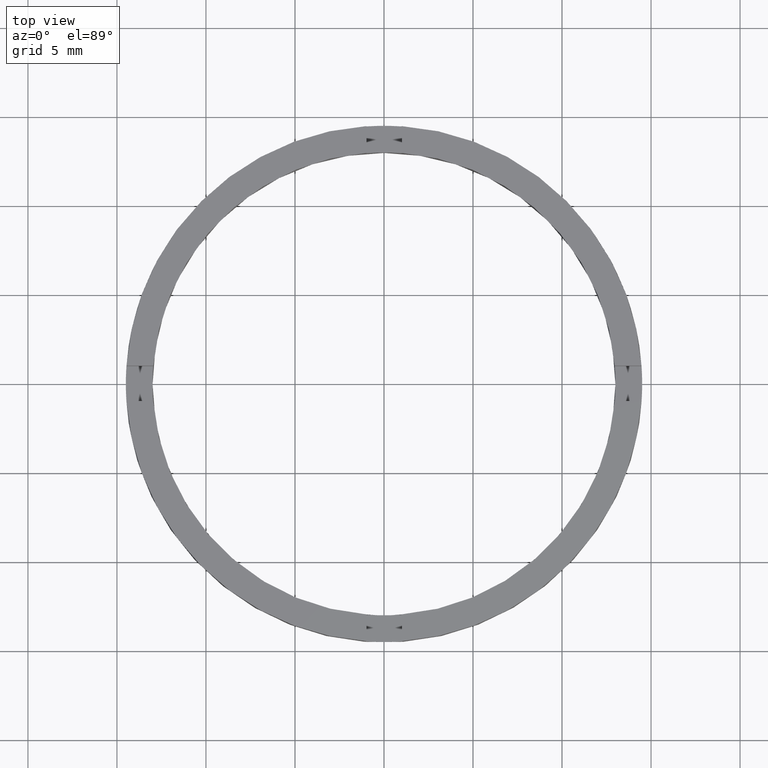
[diagram: clean part render]
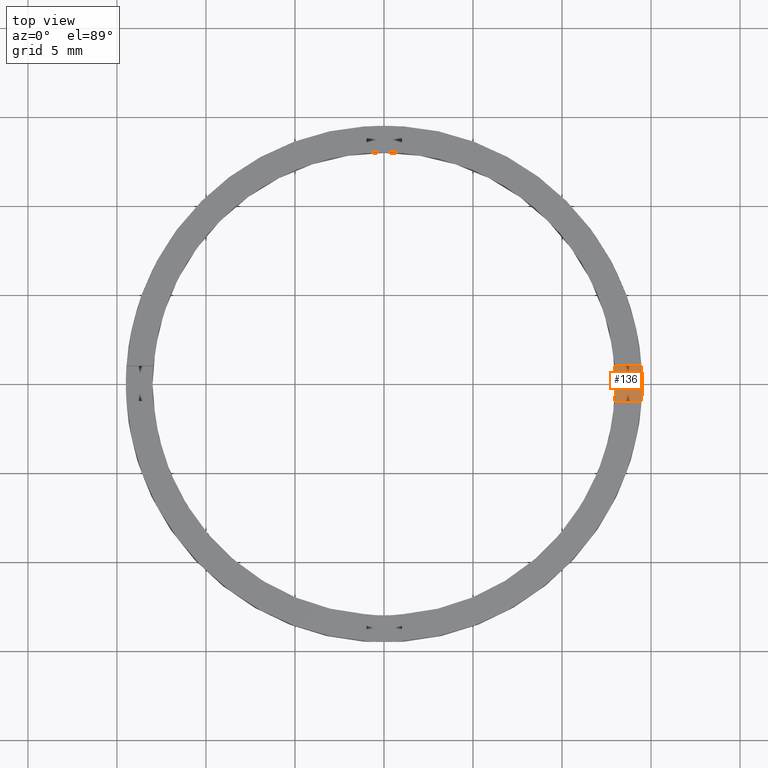
[diagram: same view with one face highlighted and labeled with its STEP entity id]
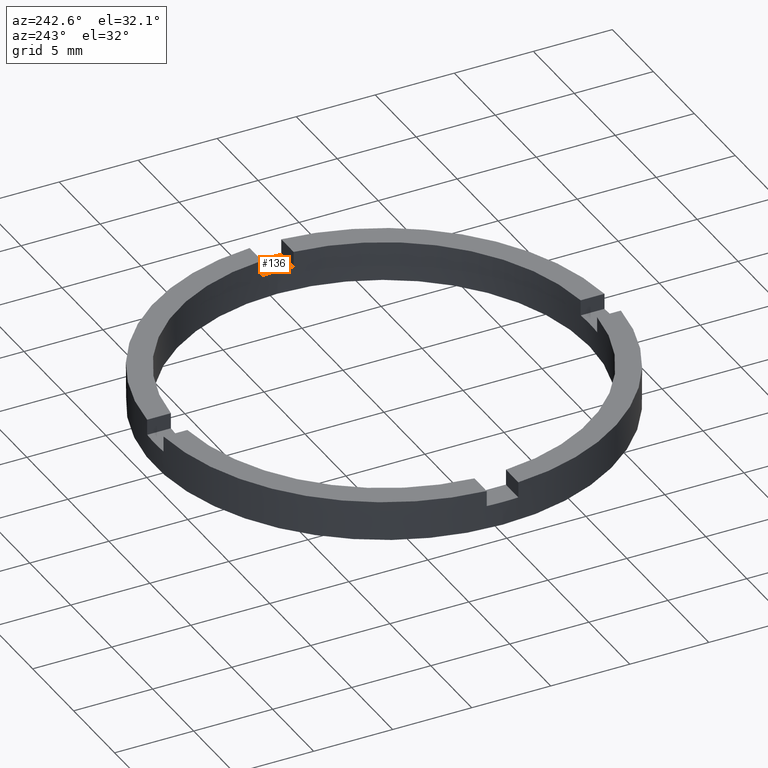
[diagram: same view with one face highlighted and labeled with its STEP entity id]
A machine part, top view. The second image highlights one B-rep face of the part: STEP entity #136.
A second angle (auxiliary view) of the same face is appended — the face is thin or edge-on in the first view.
In plain terms, the highlighted planar face has unit normal (0, 0, 1).
Its self-contained STEP definition (entity closure, byte-faithful):
#24 = DIRECTION ( 'NONE',  ( 1.000000000000000000, 4.336808689942017736E-17, 0.000000000000000000 ) ) ;
#27 = CARTESIAN_POINT ( 'NONE',  ( 4.499999999999995559, 0.9999999999998402389, 1.500000000000000000 ) ) ;
#50 = CIRCLE ( 'NONE', #184, 13.00000000000000178 ) ;
#97 = DIRECTION ( 'NONE',  ( 0.000000000000000000, 0.000000000000000000, 1.000000000000000000 ) ) ;
#117 = CIRCLE ( 'NONE', #351, 14.50000000000000000 ) ;
#132 = FACE_OUTER_BOUND ( 'NONE', #701, .T. ) ;
#136 = ADVANCED_FACE ( 'NONE', ( #132 ), #259, .T. ) ;
#142 = VECTOR ( 'NONE', #150, 1000.000000000000000 ) ;
#143 = ORIENTED_EDGE ( 'NONE', *, *, #286, .T. ) ;
#150 = DIRECTION ( 'NONE',  ( -1.000000000000000000, -4.336808689942017736E-17, -0.000000000000000000 ) ) ;
#159 = CARTESIAN_POINT ( 'NONE',  ( 14.50000000000000000, 1.775737858763662015E-15, 1.500000000000000000 ) ) ;
#184 = AXIS2_PLACEMENT_3D ( 'NONE', #503, #455, #278 ) ;
#186 = EDGE_CURVE ( 'NONE', #736, #261, #651, .T. ) ;
#218 = CARTESIAN_POINT ( 'NONE',  ( 14.46547614148944483, 0.9999999999998406830, 1.500000000000000000 ) ) ;
#219 = VERTEX_POINT ( 'NONE', #422 ) ;
#249 = CARTESIAN_POINT ( 'NONE',  ( 0.000000000000000000, 0.000000000000000000, 1.500000000000000000 ) ) ;
#259 = PLANE ( 'NONE',  #490 ) ;
#261 = VERTEX_POINT ( 'NONE', #540 ) ;
#269 = AXIS2_PLACEMENT_3D ( 'NONE', #249, #310, #349 ) ;
#278 = DIRECTION ( 'NONE',  ( 1.000000000000000000, 0.000000000000000000, 0.000000000000000000 ) ) ;
#286 = EDGE_CURVE ( 'NONE', #734, #736, #117, .T. ) ;
#310 = DIRECTION ( 'NONE',  ( 0.000000000000000000, 0.000000000000000000, 1.000000000000000000 ) ) ;
#311 = LINE ( 'NONE', #695, #313 ) ;
#313 = VECTOR ( 'NONE', #24, 1000.000000000000000 ) ;
#329 = DIRECTION ( 'NONE',  ( 1.000000000000000000, 0.000000000000000000, 0.000000000000000000 ) ) ;
#333 = EDGE_CURVE ( 'NONE', #665, #261, #443, .T. ) ;
#349 = DIRECTION ( 'NONE',  ( 1.000000000000000000, 0.000000000000000000, 0.000000000000000000 ) ) ;
#351 = AXIS2_PLACEMENT_3D ( 'NONE', #469, #97, #393 ) ;
#356 = CARTESIAN_POINT ( 'NONE',  ( 0.000000000000000000, 0.000000000000000000, 1.500000000000000000 ) ) ;
#364 = EDGE_CURVE ( 'NONE', #491, #734, #565, .T. ) ;
#393 = DIRECTION ( 'NONE',  ( 1.000000000000000000, 0.000000000000000000, 0.000000000000000000 ) ) ;
#402 = AXIS2_PLACEMENT_3D ( 'NONE', #749, #620, #329 ) ;
#415 = ORIENTED_EDGE ( 'NONE', *, *, #364, .T. ) ;
#422 = CARTESIAN_POINT ( 'NONE',  ( 12.96148139681570832, -1.000000000000159428, 1.500000000000000000 ) ) ;
#424 = EDGE_CURVE ( 'NONE', #219, #491, #311, .T. ) ;
#427 = DIRECTION ( 'NONE',  ( 0.000000000000000000, 0.000000000000000000, 1.000000000000000000 ) ) ;
#443 = CIRCLE ( 'NONE', #269, 13.00000000000000178 ) ;
#455 = DIRECTION ( 'NONE',  ( 0.000000000000000000, 0.000000000000000000, 1.000000000000000000 ) ) ;
#457 = EDGE_CURVE ( 'NONE', #219, #665, #50, .T. ) ;
#468 = CARTESIAN_POINT ( 'NONE',  ( 13.00000000000000178, 1.592040838891559293E-15, 1.500000000000000000 ) ) ;
#469 = CARTESIAN_POINT ( 'NONE',  ( 0.000000000000000000, 0.000000000000000000, 1.500000000000000000 ) ) ;
#490 = AXIS2_PLACEMENT_3D ( 'NONE', #356, #427, #492 ) ;
#491 = VERTEX_POINT ( 'NONE', #515 ) ;
#492 = DIRECTION ( 'NONE',  ( 1.000000000000000000, 0.000000000000000000, -0.000000000000000000 ) ) ;
#503 = CARTESIAN_POINT ( 'NONE',  ( 0.000000000000000000, 0.000000000000000000, 1.500000000000000000 ) ) ;
#515 = CARTESIAN_POINT ( 'NONE',  ( 14.46547614148942174, -1.000000000000159428, 1.500000000000000000 ) ) ;
#540 = CARTESIAN_POINT ( 'NONE',  ( 12.96148139681573497, 0.9999999999998406830, 1.500000000000000000 ) ) ;
#565 = CIRCLE ( 'NONE', #402, 14.50000000000000000 ) ;
#620 = DIRECTION ( 'NONE',  ( 0.000000000000000000, 0.000000000000000000, 1.000000000000000000 ) ) ;
#643 = ORIENTED_EDGE ( 'NONE', *, *, #186, .T. ) ;
#650 = ORIENTED_EDGE ( 'NONE', *, *, #424, .T. ) ;
#651 = LINE ( 'NONE', #27, #142 ) ;
#665 = VERTEX_POINT ( 'NONE', #468 ) ;
#695 = CARTESIAN_POINT ( 'NONE',  ( 4.499999999999995559, -1.000000000000159872, 1.500000000000000000 ) ) ;
#701 = EDGE_LOOP ( 'NONE', ( #415, #143, #643, #728, #771, #650 ) ) ;
#728 = ORIENTED_EDGE ( 'NONE', *, *, #333, .F. ) ;
#734 = VERTEX_POINT ( 'NONE', #159 ) ;
#736 = VERTEX_POINT ( 'NONE', #218 ) ;
#749 = CARTESIAN_POINT ( 'NONE',  ( 0.000000000000000000, 0.000000000000000000, 1.500000000000000000 ) ) ;
#771 = ORIENTED_EDGE ( 'NONE', *, *, #457, .F. ) ;